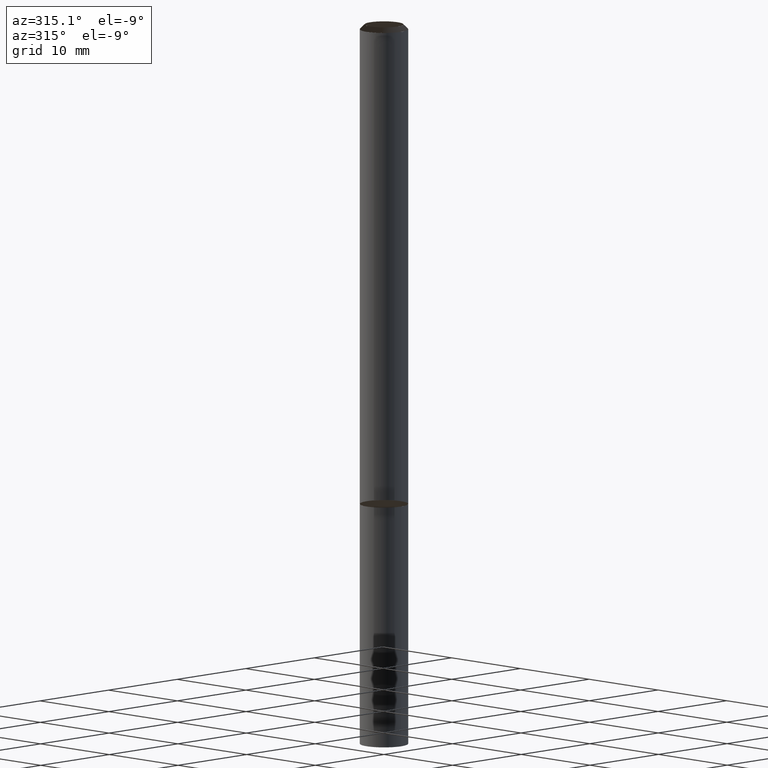
[diagram: clean part render]
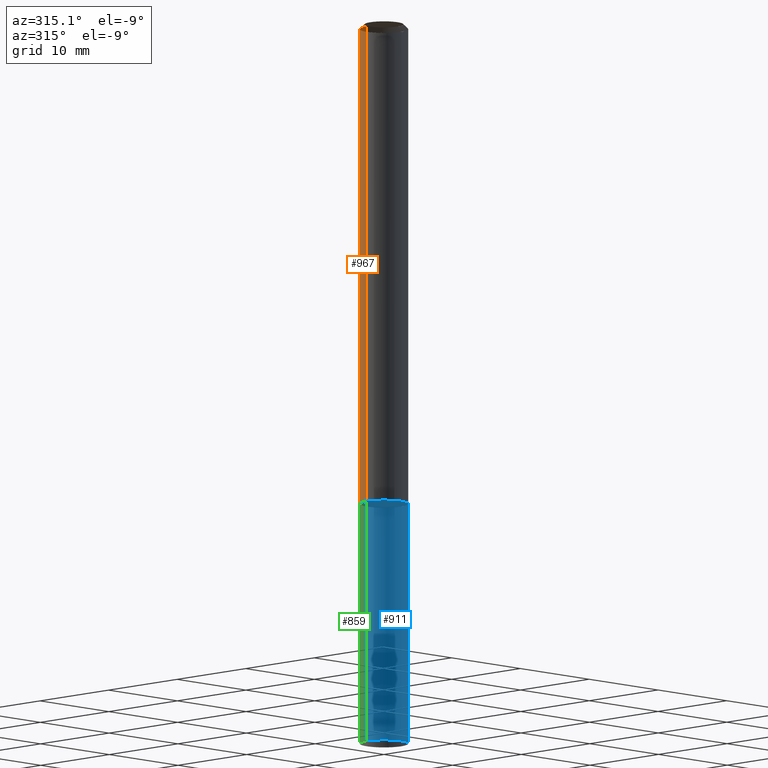
[diagram: same view with three faces highlighted in distinct colors, each labeled with its STEP entity id]
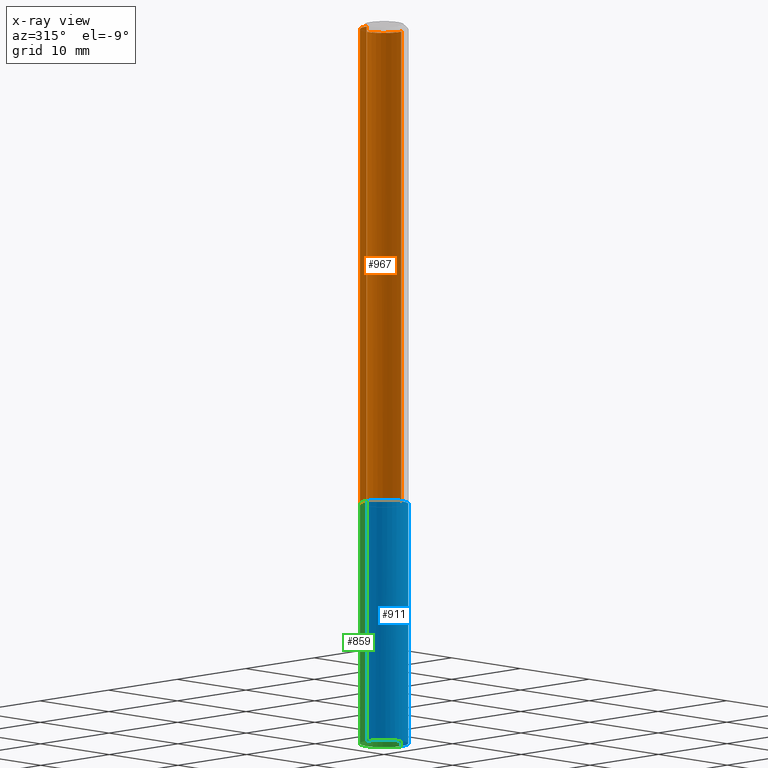
[diagram: x-ray of the same camera — body ghosted, the three highlighted faces saturated]
A machine part, auxiliary view with three faces highlighted in distinct colors.
The next image is the same camera in x-ray (body ghosted, the three faces saturated) — at least one of them is partly hidden behind the body in this view.
Their STEP definitions:

[orange] entity #967 — the highlighted face is a freeform B-spline surface patch.
#791=CARTESIAN_POINT('',(2.5,0.0,0.0));
#792=CARTESIAN_POINT('',(2.5,2.5,0.0));
#793=CARTESIAN_POINT('',(0.0,2.5,0.0));
#794=CARTESIAN_POINT('',(-2.5,2.5,0.0));
#795=CARTESIAN_POINT('',(-2.5,0.0,0.0));
#802=CARTESIAN_POINT('',(2.5,0.0,49.5));
#803=CARTESIAN_POINT('',(2.5,2.5,49.5));
#804=CARTESIAN_POINT('',(0.0,2.5,49.5));
#805=CARTESIAN_POINT('',(-2.5,2.5,49.5));
#806=CARTESIAN_POINT('',(-2.5,0.0,49.5));
#948=(
BOUNDED_SURFACE()
B_SPLINE_SURFACE(1,2,(
(#791,#792,#793,#794,#795),
(#802,#803,#804,#805,#806)
), .UNSPECIFIED.,.F.,.F.,.F.)
B_SPLINE_SURFACE_WITH_KNOTS((2,2),(3,2,3),(
0.0,1.0),(
0.0,0.5,1.0), .UNSPECIFIED.)
GEOMETRIC_REPRESENTATION_ITEM()
RATIONAL_B_SPLINE_SURFACE(((1.0,0.707106781187,1.0,0.707106781187,1.0),
(1.0,0.707106781187,1.0,0.707106781187,1.0)
))
REPRESENTATION_ITEM('')
SURFACE()
);
#949=(
BOUNDED_CURVE()
B_SPLINE_CURVE(2,(#795,#794,#793,#792,#791),.UNSPECIFIED.,.F.,.F.)
B_SPLINE_CURVE_WITH_KNOTS((3,2,3),
(0.0,0.5,1.0),.UNSPECIFIED.)
CURVE()
GEOMETRIC_REPRESENTATION_ITEM()
RATIONAL_B_SPLINE_CURVE((1.0,0.707106781187,1.0,0.707106781187,1.0))
REPRESENTATION_ITEM('')
);
#950=(
BOUNDED_CURVE()
B_SPLINE_CURVE(1,(#791,#802),.UNSPECIFIED.,.F.,.F.)
B_SPLINE_CURVE_WITH_KNOTS((2,2),
(0.0,1.0),.UNSPECIFIED.)
CURVE()
GEOMETRIC_REPRESENTATION_ITEM()
RATIONAL_B_SPLINE_CURVE((1.0,1.0))
REPRESENTATION_ITEM('')
);
#951=(
BOUNDED_CURVE()
B_SPLINE_CURVE(2,(#802,#803,#804,#805,#806),.UNSPECIFIED.,.F.,.F.)
B_SPLINE_CURVE_WITH_KNOTS((3,2,3),
(0.0,0.5,1.0),.UNSPECIFIED.)
CURVE()
GEOMETRIC_REPRESENTATION_ITEM()
RATIONAL_B_SPLINE_CURVE((1.0,0.707106781187,1.0,0.707106781187,1.0))
REPRESENTATION_ITEM('')
);
#952=(
BOUNDED_CURVE()
B_SPLINE_CURVE(1,(#806,#795),.UNSPECIFIED.,.F.,.F.)
B_SPLINE_CURVE_WITH_KNOTS((2,2),
(0.0,1.0),.UNSPECIFIED.)
CURVE()
GEOMETRIC_REPRESENTATION_ITEM()
RATIONAL_B_SPLINE_CURVE((1.0,1.0))
REPRESENTATION_ITEM('')
);
#953=VERTEX_POINT('',#791);
#954=VERTEX_POINT('',#795);
#955=VERTEX_POINT('',#802);
#956=VERTEX_POINT('',#806);
#957=EDGE_CURVE('',#954,#953,#949,.T.);
#958=EDGE_CURVE('',#953,#955,#950,.T.);
#959=EDGE_CURVE('',#955,#956,#951,.T.);
#960=EDGE_CURVE('',#956,#954,#952,.T.);
#961=ORIENTED_EDGE('',*,*,#957,.T.);
#962=ORIENTED_EDGE('',*,*,#958,.T.);
#963=ORIENTED_EDGE('',*,*,#959,.T.);
#964=ORIENTED_EDGE('',*,*,#960,.T.);
#965=EDGE_LOOP('',(#961,#962,#963,#964));
#966=FACE_OUTER_BOUND('',#965,.T.);
#967=ADVANCED_FACE('',(#966),#948,.T.);

[blue] entity #911 — the highlighted face is a freeform B-spline surface patch.
#109=CARTESIAN_POINT('',(0.0,-2.5,-25.0));
#787=CARTESIAN_POINT('',(2.5,0.0,-25.0));
#790=CARTESIAN_POINT('',(-2.5,0.0,-25.0));
#791=CARTESIAN_POINT('',(2.5,0.0,0.0));
#795=CARTESIAN_POINT('',(-2.5,0.0,0.0));
#797=CARTESIAN_POINT('',(-2.5,-2.5,-25.0));
#798=CARTESIAN_POINT('',(2.5,-2.5,-25.0));
#799=CARTESIAN_POINT('',(-2.5,-2.5,0.0));
#800=CARTESIAN_POINT('',(0.0,-2.5,0.0));
#801=CARTESIAN_POINT('',(2.5,-2.5,0.0));
#892=(
BOUNDED_SURFACE()
B_SPLINE_SURFACE(1,2,(
(#790,#797,#109,#798,#787),
(#795,#799,#800,#801,#791)
), .UNSPECIFIED.,.F.,.F.,.F.)
B_SPLINE_SURFACE_WITH_KNOTS((2,2),(3,2,3),(
0.0,1.0),(
0.0,0.5,1.0), .UNSPECIFIED.)
GEOMETRIC_REPRESENTATION_ITEM()
RATIONAL_B_SPLINE_SURFACE(((1.0,0.707106781187,1.0,0.707106781187,1.0),
(1.0,0.707106781187,1.0,0.707106781187,1.0)
))
REPRESENTATION_ITEM('')
SURFACE()
);
#893=(
BOUNDED_CURVE()
B_SPLINE_CURVE(2,(#787,#798,#109,#797,#790),.UNSPECIFIED.,.F.,.F.)
B_SPLINE_CURVE_WITH_KNOTS((3,2,3),
(0.0,0.5,1.0),.UNSPECIFIED.)
CURVE()
GEOMETRIC_REPRESENTATION_ITEM()
RATIONAL_B_SPLINE_CURVE((1.0,0.707106781187,1.0,0.707106781187,1.0))
REPRESENTATION_ITEM('')
);
#894=(
BOUNDED_CURVE()
B_SPLINE_CURVE(1,(#790,#795),.UNSPECIFIED.,.F.,.F.)
B_SPLINE_CURVE_WITH_KNOTS((2,2),
(0.0,1.0),.UNSPECIFIED.)
CURVE()
GEOMETRIC_REPRESENTATION_ITEM()
RATIONAL_B_SPLINE_CURVE((1.0,1.0))
REPRESENTATION_ITEM('')
);
#895=(
BOUNDED_CURVE()
B_SPLINE_CURVE(2,(#795,#799,#800,#801,#791),.UNSPECIFIED.,.F.,.F.)
B_SPLINE_CURVE_WITH_KNOTS((3,2,3),
(0.0,0.5,1.0),.UNSPECIFIED.)
CURVE()
GEOMETRIC_REPRESENTATION_ITEM()
RATIONAL_B_SPLINE_CURVE((1.0,0.707106781187,1.0,0.707106781187,1.0))
REPRESENTATION_ITEM('')
);
#896=(
BOUNDED_CURVE()
B_SPLINE_CURVE(1,(#791,#787),.UNSPECIFIED.,.F.,.F.)
B_SPLINE_CURVE_WITH_KNOTS((2,2),
(0.0,1.0),.UNSPECIFIED.)
CURVE()
GEOMETRIC_REPRESENTATION_ITEM()
RATIONAL_B_SPLINE_CURVE((1.0,1.0))
REPRESENTATION_ITEM('')
);
#897=VERTEX_POINT('',#787);
#898=VERTEX_POINT('',#790);
#899=VERTEX_POINT('',#791);
#900=VERTEX_POINT('',#795);
#901=EDGE_CURVE('',#897,#898,#893,.T.);
#902=EDGE_CURVE('',#898,#900,#894,.T.);
#903=EDGE_CURVE('',#900,#899,#895,.T.);
#904=EDGE_CURVE('',#899,#897,#896,.T.);
#905=ORIENTED_EDGE('',*,*,#901,.T.);
#906=ORIENTED_EDGE('',*,*,#902,.T.);
#907=ORIENTED_EDGE('',*,*,#903,.T.);
#908=ORIENTED_EDGE('',*,*,#904,.T.);
#909=EDGE_LOOP('',(#905,#906,#907,#908));
#910=FACE_OUTER_BOUND('',#909,.T.);
#911=ADVANCED_FACE('',(#910),#892,.T.);

[green] entity #859 — the highlighted face is a freeform B-spline surface patch.
#472=CARTESIAN_POINT('',(0.0,2.5,-25.0));
#787=CARTESIAN_POINT('',(2.5,0.0,-25.0));
#788=CARTESIAN_POINT('',(2.5,2.5,-25.0));
#789=CARTESIAN_POINT('',(-2.5,2.5,-25.0));
#790=CARTESIAN_POINT('',(-2.5,0.0,-25.0));
#791=CARTESIAN_POINT('',(2.5,0.0,0.0));
#792=CARTESIAN_POINT('',(2.5,2.5,0.0));
#793=CARTESIAN_POINT('',(0.0,2.5,0.0));
#794=CARTESIAN_POINT('',(-2.5,2.5,0.0));
#795=CARTESIAN_POINT('',(-2.5,0.0,0.0));
#840=(
BOUNDED_SURFACE()
B_SPLINE_SURFACE(1,2,(
(#787,#788,#472,#789,#790),
(#791,#792,#793,#794,#795)
), .UNSPECIFIED.,.F.,.F.,.F.)
B_SPLINE_SURFACE_WITH_KNOTS((2,2),(3,2,3),(
0.0,1.0),(
0.0,0.5,1.0), .UNSPECIFIED.)
GEOMETRIC_REPRESENTATION_ITEM()
RATIONAL_B_SPLINE_SURFACE(((1.0,0.707106781187,1.0,0.707106781187,1.0),
(1.0,0.707106781187,1.0,0.707106781187,1.0)
))
REPRESENTATION_ITEM('')
SURFACE()
);
#841=(
BOUNDED_CURVE()
B_SPLINE_CURVE(2,(#790,#789,#472,#788,#787),.UNSPECIFIED.,.F.,.F.)
B_SPLINE_CURVE_WITH_KNOTS((3,2,3),
(0.0,0.5,1.0),.UNSPECIFIED.)
CURVE()
GEOMETRIC_REPRESENTATION_ITEM()
RATIONAL_B_SPLINE_CURVE((1.0,0.707106781187,1.0,0.707106781187,1.0))
REPRESENTATION_ITEM('')
);
#842=(
BOUNDED_CURVE()
B_SPLINE_CURVE(1,(#787,#791),.UNSPECIFIED.,.F.,.F.)
B_SPLINE_CURVE_WITH_KNOTS((2,2),
(0.0,1.0),.UNSPECIFIED.)
CURVE()
GEOMETRIC_REPRESENTATION_ITEM()
RATIONAL_B_SPLINE_CURVE((1.0,1.0))
REPRESENTATION_ITEM('')
);
#843=(
BOUNDED_CURVE()
B_SPLINE_CURVE(2,(#791,#792,#793,#794,#795),.UNSPECIFIED.,.F.,.F.)
B_SPLINE_CURVE_WITH_KNOTS((3,2,3),
(0.0,0.5,1.0),.UNSPECIFIED.)
CURVE()
GEOMETRIC_REPRESENTATION_ITEM()
RATIONAL_B_SPLINE_CURVE((1.0,0.707106781187,1.0,0.707106781187,1.0))
REPRESENTATION_ITEM('')
);
#844=(
BOUNDED_CURVE()
B_SPLINE_CURVE(1,(#795,#790),.UNSPECIFIED.,.F.,.F.)
B_SPLINE_CURVE_WITH_KNOTS((2,2),
(0.0,1.0),.UNSPECIFIED.)
CURVE()
GEOMETRIC_REPRESENTATION_ITEM()
RATIONAL_B_SPLINE_CURVE((1.0,1.0))
REPRESENTATION_ITEM('')
);
#845=VERTEX_POINT('',#787);
#846=VERTEX_POINT('',#790);
#847=VERTEX_POINT('',#791);
#848=VERTEX_POINT('',#795);
#849=EDGE_CURVE('',#846,#845,#841,.T.);
#850=EDGE_CURVE('',#845,#847,#842,.T.);
#851=EDGE_CURVE('',#847,#848,#843,.T.);
#852=EDGE_CURVE('',#848,#846,#844,.T.);
#853=ORIENTED_EDGE('',*,*,#849,.T.);
#854=ORIENTED_EDGE('',*,*,#850,.T.);
#855=ORIENTED_EDGE('',*,*,#851,.T.);
#856=ORIENTED_EDGE('',*,*,#852,.T.);
#857=EDGE_LOOP('',(#853,#854,#855,#856));
#858=FACE_OUTER_BOUND('',#857,.T.);
#859=ADVANCED_FACE('',(#858),#840,.T.);